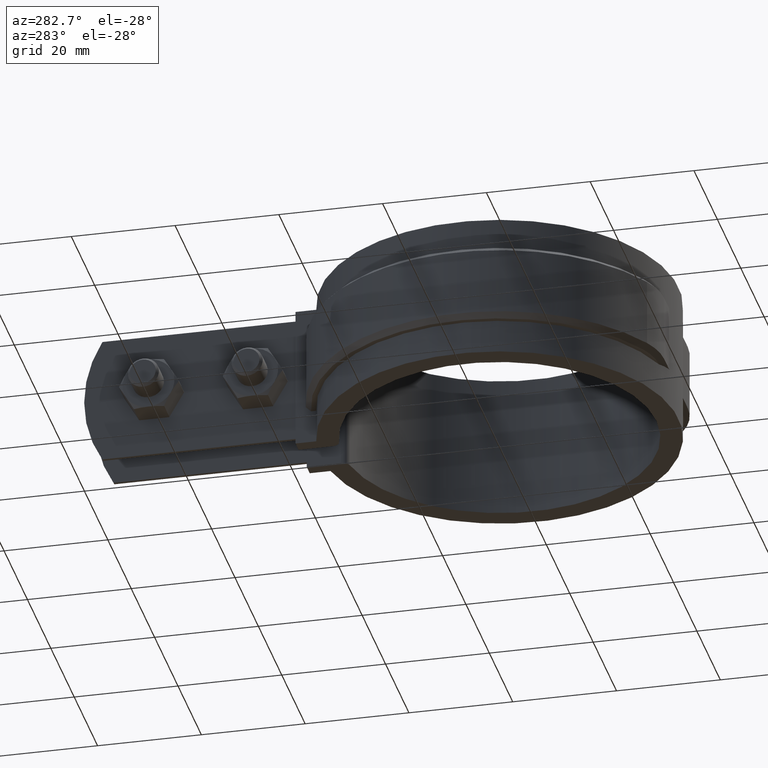
[diagram: clean part render]
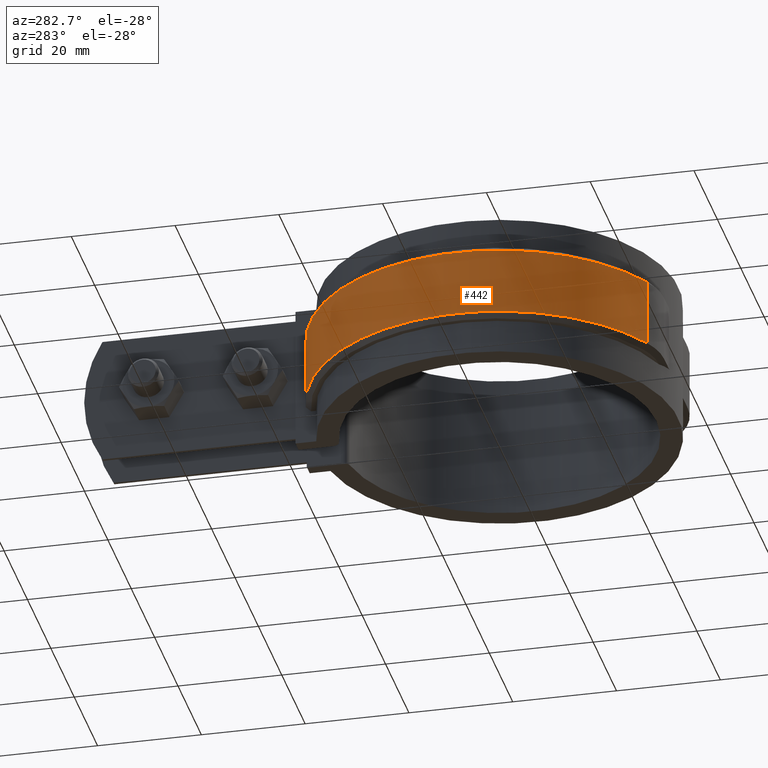
[diagram: same view with one face highlighted and labeled with its STEP entity id]
A machine part, auxiliary view. The second image highlights one B-rep face of the part: STEP entity #442.
In plain terms, the highlighted cylindrical surface (partial cylindrical patch) has radius 36.495 mm, axis along (0, 0, -1).
Its self-contained STEP definition (entity closure, byte-faithful):
#442 = ADVANCED_FACE( '', ( #792 ), #793, .T. );
#792 = FACE_OUTER_BOUND( '', #1752, .T. );
#793 = CYLINDRICAL_SURFACE( '', #1753, 36.4950000000000 );
#1752 = EDGE_LOOP( '', ( #3873, #3874, #3875, #3876 ) );
#1753 = AXIS2_PLACEMENT_3D( '', #3877, #3878, #3879 );
#3873 = ORIENTED_EDGE( '', *, *, #4673, .F. );
#3874 = ORIENTED_EDGE( '', *, *, #4720, .T. );
#3875 = ORIENTED_EDGE( '', *, *, #4798, .T. );
#3876 = ORIENTED_EDGE( '', *, *, #4715, .T. );
#3877 = CARTESIAN_POINT( '', ( -8.67361737988404E-016, -6.93889390390723E-015, -20.0000000000000 ) );
#3878 = DIRECTION( '', ( 0.000000000000000, 0.000000000000000, -1.00000000000000 ) );
#3879 = DIRECTION( '', ( 0.168801338178640, 0.985650094216553, 0.000000000000000 ) );
#4673 = EDGE_CURVE( '', #5374, #5376, #5377, .T. );
#4715 = EDGE_CURVE( '', #5447, #5376, #5448, .T. );
#4720 = EDGE_CURVE( '', #5374, #5454, #5456, .F. );
#4798 = EDGE_CURVE( '', #5454, #5447, #5564, .T. );
#5374 = VERTEX_POINT( '', #7764 );
#5376 = VERTEX_POINT( '', #7769 );
#5377 = LINE( '', #7770, #7771 );
#5447 = VERTEX_POINT( '', #7865 );
#5448 = CIRCLE( '', #7866, 36.4950000000000 );
#5454 = VERTEX_POINT( '', #7873 );
#5456 = CIRCLE( '', #7876, 36.4950000000000 );
#5564 = LINE( '', #8522, #8523 );
#7764 = CARTESIAN_POINT( '', ( -6.09999999999999, 35.9815928635740, -19.0000000000000 ) );
#7769 = CARTESIAN_POINT( '', ( -6.09999999999999, 35.9815928635740, -6.00000000000000 ) );
#7770 = CARTESIAN_POINT( '', ( -6.09999999999999, 35.9815928635740, -20.0000000000000 ) );
#7771 = VECTOR( '', #9238, 1000.00000000000 );
#7865 = CARTESIAN_POINT( '', ( -17.0660060463684, -32.2588974180042, -6.00000000000000 ) );
#7866 = AXIS2_PLACEMENT_3D( '', #9317, #9318, #9319 );
#7873 = CARTESIAN_POINT( '', ( -17.0660060463684, -32.2588974180042, -19.0000000000000 ) );
#7876 = AXIS2_PLACEMENT_3D( '', #9328, #9329, #9330 );
#8522 = CARTESIAN_POINT( '', ( -17.0660060463684, -32.2588974180042, -20.0000000000000 ) );
#8523 = VECTOR( '', #9400, 1000.00000000000 );
#9238 = DIRECTION( '', ( 0.000000000000000, 0.000000000000000, 1.00000000000000 ) );
#9317 = CARTESIAN_POINT( '', ( -8.67361737988404E-016, -6.93889390390723E-015, -6.00000000000000 ) );
#9318 = DIRECTION( '', ( 0.000000000000000, 0.000000000000000, -1.00000000000000 ) );
#9319 = DIRECTION( '', ( -1.00000000000000, 0.000000000000000, 0.000000000000000 ) );
#9328 = CARTESIAN_POINT( '', ( -8.67361737988404E-016, -6.93889390390723E-015, -19.0000000000000 ) );
#9329 = DIRECTION( '', ( 0.000000000000000, 0.000000000000000, -1.00000000000000 ) );
#9330 = DIRECTION( '', ( -1.00000000000000, 0.000000000000000, 0.000000000000000 ) );
#9400 = DIRECTION( '', ( 0.000000000000000, 0.000000000000000, 1.00000000000000 ) );